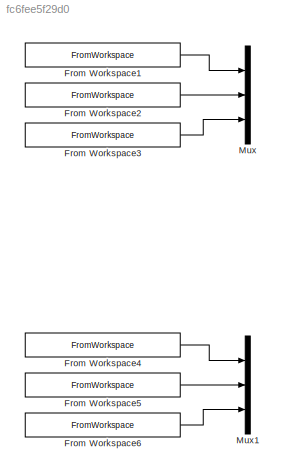
MODEL slx_fc6fee5f29d0
KIND model
CONFIG AbsTol = auto
CONFIG EnableMultiTasking = off
CONFIG FixedStep = auto
CONFIG MaxStep = 1/25e3
CONFIG MinStep = auto
CONFIG RelTol = 1e-3
CONFIG SampleTimeConstraint = Unconstrained
CONFIG SolverName = VariableStepAuto
CONFIG StartTime = 0.0
CONFIG StopTime = 0.1
BLOCK [FromWorkspace] From Workspace1
  SampleTime = -1
  VariableName = [meas32.Timestamp meas32.V_ch1]
BLOCK [FromWorkspace] From Workspace2
  SampleTime = -1
  VariableName = [meas32.Timestamp meas32.V_ch2]
BLOCK [FromWorkspace] From Workspace3
  SampleTime = -1
  VariableName = [meas32.Timestamp meas32.V_ch3]
BLOCK [FromWorkspace] From Workspace4
  SampleTime = -1
  VariableName = [meas32.Timestamp meas32.I_ch1]
BLOCK [FromWorkspace] From Workspace5
  SampleTime = -1
  VariableName = [meas32.Timestamp meas32.I_ch2]
BLOCK [FromWorkspace] From Workspace6
  SampleTime = -1
  VariableName = [meas32.Timestamp meas32.I_ch3]
BLOCK [Mux] Mux
  DisplayOption = bar
  Inputs = 3
  Ports = [3, 1]
BLOCK [Mux] Mux1
  DisplayOption = bar
  Inputs = 3
  Ports = [3, 1]
LINE From Workspace1:1 -> Mux:1
LINE From Workspace2:1 -> Mux:2
LINE From Workspace3:1 -> Mux:3
LINE From Workspace4:1 -> Mux1:1
LINE From Workspace5:1 -> Mux1:2
LINE From Workspace6:1 -> Mux1:3
